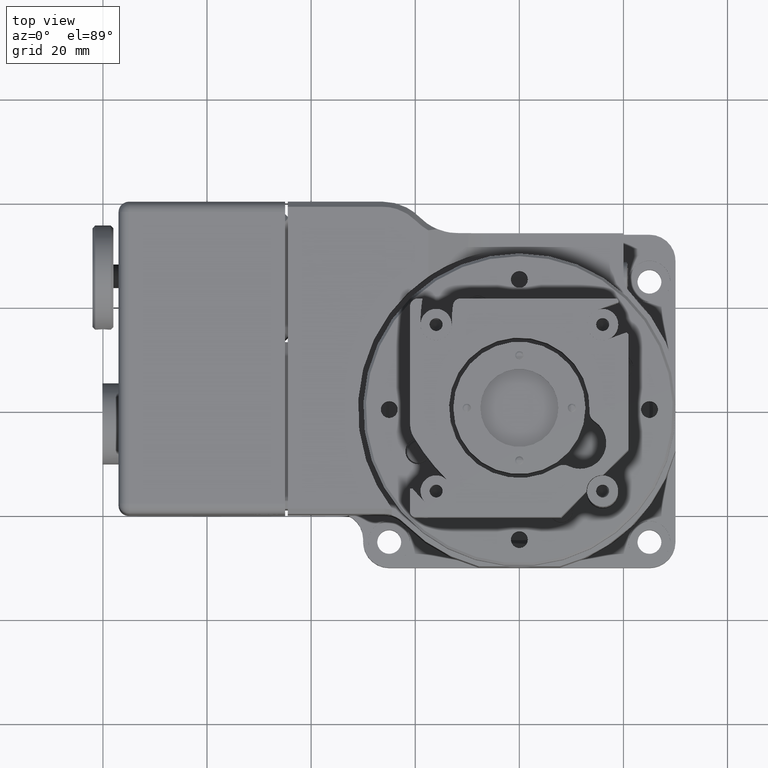
[diagram: clean part render]
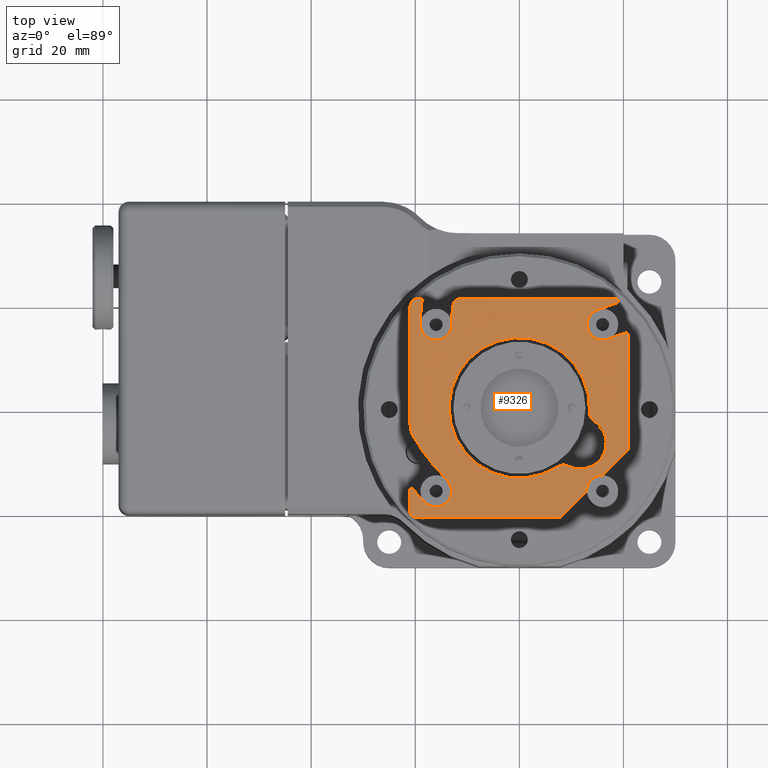
[diagram: same view with one face highlighted and labeled with its STEP entity id]
A machine part, top view. The second image highlights one B-rep face of the part: STEP entity #9326.
In plain terms, the highlighted planar face has unit normal (0, 0, 1).
Its self-contained STEP definition (entity closure, byte-faithful):
#195 = ORIENTED_EDGE ( 'NONE', *, *, #66504, .T. ) ;
#414 = AXIS2_PLACEMENT_3D ( 'NONE', #52020, #24429, #19027 ) ;
#466 = CIRCLE ( 'NONE', #22403, 1.377952755905511806 ) ;
#819 = ORIENTED_EDGE ( 'NONE', *, *, #994, .T. ) ;
#845 = ORIENTED_EDGE ( 'NONE', *, *, #70106, .T. ) ;
#994 = EDGE_CURVE ( 'NONE', #48477, #5063, #29060, .T. ) ;
#1185 = VERTEX_POINT ( 'NONE', #37935 ) ;
#1932 = DIRECTION ( 'NONE',  ( -0.7667625590239057765, -0.6419308203218718756, 0.000000000000000000 ) ) ;
#2111 = CARTESIAN_POINT ( 'NONE',  ( -0.8267716535433071723, 0.8267716535433071723, 0.4724409448818898127 ) ) ;
#2148 = EDGE_CURVE ( 'NONE', #54447, #43154, #21617, .T. ) ;
#2163 = AXIS2_PLACEMENT_3D ( 'NONE', #71660, #43812, #5383 ) ;
#2354 = CARTESIAN_POINT ( 'NONE',  ( -0.7990056959484960197, -0.2219316228917834755, 0.4724409448818898127 ) ) ;
#2410 = AXIS2_PLACEMENT_3D ( 'NONE', #37332, #69566, #54018 ) ;
#2493 = DIRECTION ( 'NONE',  ( 0.000000000000000000, 0.000000000000000000, -1.000000000000000000 ) ) ;
#2515 = DIRECTION ( 'NONE',  ( -0.9640925617953834958, -0.2655664366798161646, 0.000000000000000000 ) ) ;
#2758 = ORIENTED_EDGE ( 'NONE', *, *, #7486, .T. ) ;
#2844 = AXIS2_PLACEMENT_3D ( 'NONE', #52887, #57976, #23878 ) ;
#2902 = DIRECTION ( 'NONE',  ( 0.000000000000000000, 0.000000000000000000, -1.000000000000000000 ) ) ;
#2970 = FACE_BOUND ( 'NONE', #21435, .T. ) ;
#3257 = DIRECTION ( 'NONE',  ( -1.000000000000000000, 4.991450824911170448E-15, 0.000000000000000000 ) ) ;
#3496 = ORIENTED_EDGE ( 'NONE', *, *, #65897, .T. ) ;
#3568 = DIRECTION ( 'NONE',  ( 0.7071067811865469066, 0.7071067811865479058, 0.000000000000000000 ) ) ;
#3620 = LINE ( 'NONE', #31118, #66174 ) ;
#3662 = CIRCLE ( 'NONE', #44165, 0.1968503937007872739 ) ;
#3838 = VERTEX_POINT ( 'NONE', #28087 ) ;
#3921 = CARTESIAN_POINT ( 'NONE',  ( 0.4429133858267716439, -0.6988188976377952555, 0.4724409448818898127 ) ) ;
#4786 = AXIS2_PLACEMENT_3D ( 'NONE', #27493, #20998, #32601 ) ;
#5063 = VERTEX_POINT ( 'NONE', #71492 ) ;
#5069 = CARTESIAN_POINT ( 'NONE',  ( -0.7480314960629921295, 0.6299212598425196763, 0.4724409448818898127 ) ) ;
#5149 = ORIENTED_EDGE ( 'NONE', *, *, #64373, .F. ) ;
#5383 = DIRECTION ( 'NONE',  ( -0.6605782590758157991, 0.7507571935295487275, 0.000000000000000000 ) ) ;
#5781 = DIRECTION ( 'NONE',  ( -1.000000000000000000, 0.000000000000000000, 0.000000000000000000 ) ) ;
#6119 = EDGE_CURVE ( 'NONE', #27174, #26895, #62711, .T. ) ;
#6920 = CARTESIAN_POINT ( 'NONE',  ( 0.6337967219021496401, -0.5079355615624173703, 0.4724409448818898127 ) ) ;
#6965 = LINE ( 'NONE', #16754, #50364 ) ;
#7341 = DIRECTION ( 'NONE',  ( 0.000000000000000000, 0.000000000000000000, -1.000000000000000000 ) ) ;
#7486 = EDGE_CURVE ( 'NONE', #67746, #54447, #42456, .T. ) ;
#7643 = EDGE_CURVE ( 'NONE', #3838, #26895, #22441, .T. ) ;
#7894 = EDGE_CURVE ( 'NONE', #64468, #9811, #466, .T. ) ;
#8301 = DIRECTION ( 'NONE',  ( -0.7071067811865457964, -0.7071067811865492381, 0.000000000000000000 ) ) ;
#8642 = ORIENTED_EDGE ( 'NONE', *, *, #67127, .T. ) ;
#9326 = ADVANCED_FACE ( 'NONE', ( #2970, #13800 ), #70290, .T. ) ;
#9447 = DIRECTION ( 'NONE',  ( 1.000000000000000000, 1.057355261547769924E-16, 0.000000000000000000 ) ) ;
#9811 = VERTEX_POINT ( 'NONE', #11675 ) ;
#10252 = DIRECTION ( 'NONE',  ( 1.000000000000000000, 0.000000000000000000, 0.000000000000000000 ) ) ;
#10797 = EDGE_CURVE ( 'NONE', #43154, #68776, #33566, .T. ) ;
#11652 = DIRECTION ( 'NONE',  ( 3.172065784643300034E-16, -1.000000000000000000, 0.000000000000000000 ) ) ;
#11675 = CARTESIAN_POINT ( 'NONE',  ( -0.7338982736762833525, 0.8267716535433071723, 0.4724409448818898127 ) ) ;
#12147 = CARTESIAN_POINT ( 'NONE',  ( 0.5895251799221654654, 0.7409085772581771590, 0.4724409448818898127 ) ) ;
#12274 = DIRECTION ( 'NONE',  ( 0.000000000000000000, 0.000000000000000000, -1.000000000000000000 ) ) ;
#12632 = LINE ( 'NONE', #50708, #60952 ) ;
#12662 = DIRECTION ( 'NONE',  ( -0.7071067811865452413, 0.7071067811865499042, 0.000000000000000000 ) ) ;
#12681 = CARTESIAN_POINT ( 'NONE',  ( -0.7874015748031496509, -0.8267716535433071723, 0.4724409448818898127 ) ) ;
#12864 = VERTEX_POINT ( 'NONE', #41729 ) ;
#13284 = DIRECTION ( 'NONE',  ( -1.000000000000000000, 0.000000000000000000, 0.000000000000000000 ) ) ;
#13800 = FACE_OUTER_BOUND ( 'NONE', #42224, .T. ) ;
#13871 = EDGE_CURVE ( 'NONE', #32417, #25355, #29654, .T. ) ;
#14068 = AXIS2_PLACEMENT_3D ( 'NONE', #41383, #7341, #1932 ) ;
#14743 = EDGE_CURVE ( 'NONE', #15553, #12864, #34891, .T. ) ;
#14873 = EDGE_CURVE ( 'NONE', #15553, #63549, #3662, .T. ) ;
#14909 = LINE ( 'NONE', #20687, #22901 ) ;
#15156 = CARTESIAN_POINT ( 'NONE',  ( 0.7283464566929134243, 0.8070866141732283561, 0.4724409448818898127 ) ) ;
#15553 = VERTEX_POINT ( 'NONE', #2354 ) ;
#15908 = VECTOR ( 'NONE', #24198, 39.37007874015748854 ) ;
#15993 = VERTEX_POINT ( 'NONE', #31168 ) ;
#16232 = CARTESIAN_POINT ( 'NONE',  ( 0.8267716535433071723, 0.5477655059264645576, 0.4724409448818898127 ) ) ;
#16754 = CARTESIAN_POINT ( 'NONE',  ( -0.8267716535433071723, -0.8267716535433071723, 0.4724409448818898127 ) ) ;
#17003 = CARTESIAN_POINT ( 'NONE',  ( -0.6299212598425196763, -0.1211321637321318978, 0.4724409448818898127 ) ) ;
#17256 = LINE ( 'NONE', #65786, #50482 ) ;
#17802 = CARTESIAN_POINT ( 'NONE',  ( 0.7283464566929134243, 0.8267716535433071723, 0.4724409448818898127 ) ) ;
#17920 = EDGE_CURVE ( 'NONE', #68776, #27174, #14909, .T. ) ;
#18675 = EDGE_CURVE ( 'NONE', #63402, #1185, #48449, .T. ) ;
#19027 = DIRECTION ( 'NONE',  ( -0.05159593148689955305, 0.9986680428721043112, 0.000000000000000000 ) ) ;
#19098 = DIRECTION ( 'NONE',  ( 0.000000000000000000, 0.000000000000000000, -1.000000000000000000 ) ) ;
#19569 = ORIENTED_EDGE ( 'NONE', *, *, #17920, .T. ) ;
#19685 = CIRCLE ( 'NONE', #28933, 0.1181102362204724116 ) ;
#19718 = EDGE_CURVE ( 'NONE', #3838, #54121, #17256, .T. ) ;
#19784 = ORIENTED_EDGE ( 'NONE', *, *, #13871, .T. ) ;
#20206 = ORIENTED_EDGE ( 'NONE', *, *, #10797, .T. ) ;
#20687 = CARTESIAN_POINT ( 'NONE',  ( 0.4429133858267716439, -0.6988188976377952555, 0.4724409448818898127 ) ) ;
#20953 = VECTOR ( 'NONE', #13284, 39.37007874015748143 ) ;
#20964 = CARTESIAN_POINT ( 'NONE',  ( 0.3700935256529865880, -0.4407189925439173317, 0.4724409448818898127 ) ) ;
#20998 = DIRECTION ( 'NONE',  ( 0.000000000000000000, 0.000000000000000000, 1.000000000000000000 ) ) ;
#21435 = EDGE_LOOP ( 'NONE', ( #28886, #819, #5149, #64093 ) ) ;
#21617 = LINE ( 'NONE', #3921, #62107 ) ;
#22102 = DIRECTION ( 'NONE',  ( 0.9850246108334966832, -0.1724137931034478710, 0.000000000000000000 ) ) ;
#22203 = CARTESIAN_POINT ( 'NONE',  ( 0.6299212598425196763, 0.6299212598425196763, 0.4724409448818898127 ) ) ;
#22403 = AXIS2_PLACEMENT_3D ( 'NONE', #31358, #25531, #42604 ) ;
#22415 = LINE ( 'NONE', #62266, #39790 ) ;
#22441 = CIRCLE ( 'NONE', #2844, 0.01968503937007870866 ) ;
#22901 = VECTOR ( 'NONE', #64868, 39.37007874015748854 ) ;
#23001 = CARTESIAN_POINT ( 'NONE',  ( 0.5667206062998071392, -0.1001508987196759737, 0.4724409448818898127 ) ) ;
#23100 = AXIS2_PLACEMENT_3D ( 'NONE', #22203, #26553, #10252 ) ;
#23878 = DIRECTION ( 'NONE',  ( 0.5735764363510527097, 0.8191520442889871356, 0.000000000000000000 ) ) ;
#24198 = DIRECTION ( 'NONE',  ( 0.9396926207859083169, 0.3420201433256691015, 0.000000000000000000 ) ) ;
#24429 = DIRECTION ( 'NONE',  ( 0.000000000000000000, 0.000000000000000000, -1.000000000000000000 ) ) ;
#24542 = ORIENTED_EDGE ( 'NONE', *, *, #58620, .T. ) ;
#25146 = VERTEX_POINT ( 'NONE', #23001 ) ;
#25295 = CARTESIAN_POINT ( 'NONE',  ( -0.7874015748031496509, -0.7874015748031496509, 0.4724409448818898127 ) ) ;
#25355 = VERTEX_POINT ( 'NONE', #59470 ) ;
#25531 = DIRECTION ( 'NONE',  ( 0.000000000000000000, 0.000000000000000000, -1.000000000000000000 ) ) ;
#25898 = CIRCLE ( 'NONE', #47948, 1.141732283464567344 ) ;
#25926 = CARTESIAN_POINT ( 'NONE',  ( 0.6703173397628738872, 0.5189339424268621936, 0.4724409448818898127 ) ) ;
#26553 = DIRECTION ( 'NONE',  ( 0.000000000000000000, 0.000000000000000000, -1.000000000000000000 ) ) ;
#26895 = VERTEX_POINT ( 'NONE', #16232 ) ;
#26933 = CIRCLE ( 'NONE', #414, 0.07874015748031491790 ) ;
#27174 = VERTEX_POINT ( 'NONE', #27337 ) ;
#27337 = CARTESIAN_POINT ( 'NONE',  ( 0.8267716535433071723, -0.3149606299212598381, 0.4724409448818898127 ) ) ;
#27424 = DIRECTION ( 'NONE',  ( 0.000000000000000000, 0.000000000000000000, -1.000000000000000000 ) ) ;
#27448 = ORIENTED_EDGE ( 'NONE', *, *, #27512, .F. ) ;
#27493 = CARTESIAN_POINT ( 'NONE',  ( 0.6299212598425196763, 0.6299212598425196763, 0.4724409448818898127 ) ) ;
#27512 = EDGE_CURVE ( 'NONE', #67746, #31209, #53502, .T. ) ;
#28087 = CARTESIAN_POINT ( 'NONE',  ( 0.8003539341865039125, 0.5662633921624095068, 0.4724409448818898127 ) ) ;
#28398 = AXIS2_PLACEMENT_3D ( 'NONE', #42066, #35203, #31177 ) ;
#28886 = ORIENTED_EDGE ( 'NONE', *, *, #68606, .F. ) ;
#28933 = AXIS2_PLACEMENT_3D ( 'NONE', #53090, #36759, #53796 ) ;
#29060 = CIRCLE ( 'NONE', #45286, 0.5314960629921259283 ) ;
#29465 = ORIENTED_EDGE ( 'NONE', *, *, #14873, .F. ) ;
#29617 = CIRCLE ( 'NONE', #40009, 0.1968503937007873850 ) ;
#29654 = LINE ( 'NONE', #56854, #15908 ) ;
#30131 = CARTESIAN_POINT ( 'NONE',  ( -0.7134378088015590480, -0.7134378088015590480, 0.4724409448818898127 ) ) ;
#30452 = DIRECTION ( 'NONE',  ( 0.000000000000000000, 0.000000000000000000, -1.000000000000000000 ) ) ;
#30665 = CARTESIAN_POINT ( 'NONE',  ( -0.8092578807217913894, -0.6102362204724409711, 0.4724409448818898127 ) ) ;
#31118 = CARTESIAN_POINT ( 'NONE',  ( -0.4046289403608976376, -0.6102362204724409711, 0.4724409448818898127 ) ) ;
#31168 = CARTESIAN_POINT ( 'NONE',  ( -0.8267716535433071723, -0.6102362204724409711, 0.4724409448818898127 ) ) ;
#31177 = DIRECTION ( 'NONE',  ( -0.8906698608183789556, -0.4546506340364757648, 0.000000000000000000 ) ) ;
#31209 = VERTEX_POINT ( 'NONE', #43158 ) ;
#31358 = CARTESIAN_POINT ( 'NONE',  ( 0.6299212598425196763, 0.6299212598425196763, 0.4724409448818898127 ) ) ;
#31722 = CIRCLE ( 'NONE', #64079, 0.05905511811023620578 ) ;
#32164 = CARTESIAN_POINT ( 'NONE',  ( 0.5079355615624173703, -0.6337967219021496401, 0.4724409448818898127 ) ) ;
#32379 = VECTOR ( 'NONE', #9447, 39.37007874015748143 ) ;
#32417 = VERTEX_POINT ( 'NONE', #12147 ) ;
#32601 = DIRECTION ( 'NONE',  ( 0.8756394594652988639, 0.4829653579992249091, 0.000000000000000000 ) ) ;
#33224 = ORIENTED_EDGE ( 'NONE', *, *, #14743, .T. ) ;
#33426 = CARTESIAN_POINT ( 'NONE',  ( -0.8267716535433071723, -0.8267716535433071723, 0.4724409448818898127 ) ) ;
#33566 = CIRCLE ( 'NONE', #47498, 0.1220472440944882081 ) ;
#34438 = CARTESIAN_POINT ( 'NONE',  ( -0.8267716535433071723, 0.7677165354330708347, 0.4724409448818898127 ) ) ;
#34655 = VECTOR ( 'NONE', #71449, 39.37007874015748143 ) ;
#34891 = CIRCLE ( 'NONE', #4786, 1.663576141572405520 ) ;
#34896 = VERTEX_POINT ( 'NONE', #17802 ) ;
#35085 = CARTESIAN_POINT ( 'NONE',  ( 0.000000000000000000, 1.365923996832129914E-18, 0.4724409448818898127 ) ) ;
#35203 = DIRECTION ( 'NONE',  ( 0.000000000000000000, 0.000000000000000000, -1.000000000000000000 ) ) ;
#35253 = EDGE_CURVE ( 'NONE', #25355, #57684, #22415, .T. ) ;
#36046 = EDGE_CURVE ( 'NONE', #34896, #1185, #12632, .T. ) ;
#36759 = DIRECTION ( 'NONE',  ( 0.000000000000000000, 0.000000000000000000, -1.000000000000000000 ) ) ;
#37332 = CARTESIAN_POINT ( 'NONE',  ( 1.748382715945129988E-16, 0.000000000000000000, 0.4724409448818898127 ) ) ;
#37614 = DIRECTION ( 'NONE',  ( 0.7071067811865406894, 0.7071067811865544561, 0.000000000000000000 ) ) ;
#37888 = CARTESIAN_POINT ( 'NONE',  ( -0.5118110236220472231, 0.6299212598425196763, 0.4724409448818898127 ) ) ;
#37935 = CARTESIAN_POINT ( 'NONE',  ( -0.4439513147232952983, 0.8267716535433071723, 0.4724409448818898127 ) ) ;
#38527 = VERTEX_POINT ( 'NONE', #37888 ) ;
#38969 = CIRCLE ( 'NONE', #44795, 0.01968503937007867050 ) ;
#38990 = DIRECTION ( 'NONE',  ( -0.9396926207859086499, -0.3420201433256679358, 0.000000000000000000 ) ) ;
#39125 = CARTESIAN_POINT ( 'NONE',  ( -0.8267716535433071723, -0.1211321637321318978, 0.4724409448818898127 ) ) ;
#39412 = ORIENTED_EDGE ( 'NONE', *, *, #70177, .F. ) ;
#39790 = VECTOR ( 'NONE', #67658, 39.37007874015748143 ) ;
#40009 = AXIS2_PLACEMENT_3D ( 'NONE', #57590, #40565, #40920 ) ;
#40442 = EDGE_CURVE ( 'NONE', #15993, #31209, #65653, .T. ) ;
#40565 = DIRECTION ( 'NONE',  ( 0.000000000000000000, 0.000000000000000000, -1.000000000000000000 ) ) ;
#40920 = DIRECTION ( 'NONE',  ( -0.6517268955682880005, -0.7584537254130419015, 0.000000000000000000 ) ) ;
#41339 = DIRECTION ( 'NONE',  ( 1.000000000000000000, 0.000000000000000000, 0.000000000000000000 ) ) ;
#41383 = CARTESIAN_POINT ( 'NONE',  ( 0.6299212598425196763, 0.6299212598425196763, 0.4724409448818898127 ) ) ;
#41534 = VECTOR ( 'NONE', #47165, 39.37007874015748143 ) ;
#41630 = CIRCLE ( 'NONE', #23100, 0.1181102362204724116 ) ;
#41729 = CARTESIAN_POINT ( 'NONE',  ( -0.5464047108834803046, -0.5464047108834803046, 0.4724409448818898127 ) ) ;
#42066 = CARTESIAN_POINT ( 'NONE',  ( 0.6092932117946929793, -0.03391204560912122051, 0.4724409448818898127 ) ) ;
#42224 = EDGE_LOOP ( 'NONE', ( #27448, #2758, #67936, #20206, #19569, #61388, #43870, #65827, #24542, #19784, #62744, #46539, #53636, #45276, #845, #47576, #68882, #3496, #39412, #46082, #29465, #33224, #64795, #195, #8642, #69056 ) ) ;
#42456 = LINE ( 'NONE', #64518, #32379 ) ;
#42604 = DIRECTION ( 'NONE',  ( -0.9897433186107870151, 0.1428571428571429880, 0.000000000000000000 ) ) ;
#42682 = EDGE_CURVE ( 'NONE', #12864, #50767, #43392, .T. ) ;
#43154 = VERTEX_POINT ( 'NONE', #32164 ) ;
#43158 = CARTESIAN_POINT ( 'NONE',  ( -0.8267716535433071723, -0.7874015748031496509, 0.4724409448818898127 ) ) ;
#43392 = CIRCLE ( 'NONE', #50333, 0.1181102362204724116 ) ;
#43585 = EDGE_CURVE ( 'NONE', #57539, #63549, #6965, .T. ) ;
#43812 = DIRECTION ( 'NONE',  ( 0.000000000000000000, 0.000000000000000000, -1.000000000000000000 ) ) ;
#43870 = ORIENTED_EDGE ( 'NONE', *, *, #7643, .F. ) ;
#43929 = EDGE_CURVE ( 'NONE', #25146, #47246, #29617, .T. ) ;
#44165 = AXIS2_PLACEMENT_3D ( 'NONE', #17003, #12274, #2515 ) ;
#44662 = CARTESIAN_POINT ( 'NONE',  ( -0.6299212598425196763, -0.6299212598425196763, 0.4724409448818898127 ) ) ;
#44795 = AXIS2_PLACEMENT_3D ( 'NONE', #15156, #27424, #37614 ) ;
#45276 = ORIENTED_EDGE ( 'NONE', *, *, #18675, .F. ) ;
#45286 = AXIS2_PLACEMENT_3D ( 'NONE', #35085, #2493, #52831 ) ;
#45699 = EDGE_CURVE ( 'NONE', #34896, #57684, #38969, .T. ) ;
#46082 = ORIENTED_EDGE ( 'NONE', *, *, #43585, .T. ) ;
#46539 = ORIENTED_EDGE ( 'NONE', *, *, #45699, .F. ) ;
#47165 = DIRECTION ( 'NONE',  ( 0.000000000000000000, 1.000000000000000000, 0.000000000000000000 ) ) ;
#47246 = VERTEX_POINT ( 'NONE', #20964 ) ;
#47391 = CARTESIAN_POINT ( 'NONE',  ( 0.6299212598425196763, -0.6299212598425196763, 0.4724409448818898127 ) ) ;
#47498 = AXIS2_PLACEMENT_3D ( 'NONE', #47391, #19098, #69055 ) ;
#47576 = ORIENTED_EDGE ( 'NONE', *, *, #59123, .T. ) ;
#47834 = CARTESIAN_POINT ( 'NONE',  ( 0.7480314960629921295, 0.8070866141732283561, 0.4724409448818898127 ) ) ;
#47948 = AXIS2_PLACEMENT_3D ( 'NONE', #49671, #61224, #22102 ) ;
#48449 = CIRCLE ( 'NONE', #2163, 0.05905511811023624047 ) ;
#48477 = VERTEX_POINT ( 'NONE', #55220 ) ;
#49671 = CARTESIAN_POINT ( 'NONE',  ( 0.6299212598425196763, 0.6299212598425196763, 0.4724409448818898127 ) ) ;
#50333 = AXIS2_PLACEMENT_3D ( 'NONE', #44662, #30452, #41339 ) ;
#50364 = VECTOR ( 'NONE', #11652, 39.37007874015748143 ) ;
#50482 = VECTOR ( 'NONE', #38990, 39.37007874015748143 ) ;
#50708 = CARTESIAN_POINT ( 'NONE',  ( -0.8267716535433071723, 0.8267716535433071723, 0.4724409448818898127 ) ) ;
#50767 = VERTEX_POINT ( 'NONE', #30131 ) ;
#51807 = DIRECTION ( 'NONE',  ( 0.000000000000000000, 0.000000000000000000, -1.000000000000000000 ) ) ;
#52020 = CARTESIAN_POINT ( 'NONE',  ( 0.3340152988891429420, -0.5107073769630590121, 0.4724409448818898127 ) ) ;
#52161 = CARTESIAN_POINT ( 'NONE',  ( -0.7677165354330708347, 0.7677165354330708347, 0.4724409448818898127 ) ) ;
#52831 = DIRECTION ( 'NONE',  ( -0.2655968938874490592, -0.9640841716143561113, 0.000000000000000000 ) ) ;
#52887 = CARTESIAN_POINT ( 'NONE',  ( 0.8070866141732283561, 0.5477655059264645576, 0.4724409448818898127 ) ) ;
#52943 = CARTESIAN_POINT ( 'NONE',  ( 0.8267716535433071723, 0.8267716535433071723, 0.4724409448818898127 ) ) ;
#53059 = CARTESIAN_POINT ( 'NONE',  ( -0.5025261824268858479, 0.7752326413743739764, 0.4724409448818898127 ) ) ;
#53090 = CARTESIAN_POINT ( 'NONE',  ( -0.6299212598425196763, 0.6299212598425196763, 0.4724409448818898127 ) ) ;
#53502 = CIRCLE ( 'NONE', #68490, 0.03937007874015743814 ) ;
#53636 = ORIENTED_EDGE ( 'NONE', *, *, #36046, .T. ) ;
#53796 = DIRECTION ( 'NONE',  ( 1.000000000000000000, 0.000000000000000000, 0.000000000000000000 ) ) ;
#54018 = DIRECTION ( 'NONE',  ( 1.000000000000000000, 0.000000000000000000, 0.000000000000000000 ) ) ;
#54121 = VERTEX_POINT ( 'NONE', #25926 ) ;
#54447 = VERTEX_POINT ( 'NONE', #61680 ) ;
#55220 = CARTESIAN_POINT ( 'NONE',  ( 0.2909165506453826877, -0.4448096509033070411, 0.4724409448818898127 ) ) ;
#56239 = CARTESIAN_POINT ( 'NONE',  ( -0.7677165354330708347, 0.8267716535433071723, 0.4724409448818898127 ) ) ;
#56783 = VERTEX_POINT ( 'NONE', #30665 ) ;
#56854 = CARTESIAN_POINT ( 'NONE',  ( 0.2101815495590917404, 0.6028387872475393650, 0.4724409448818898127 ) ) ;
#57539 = VERTEX_POINT ( 'NONE', #34438 ) ;
#57590 = CARTESIAN_POINT ( 'NONE',  ( 0.4602890925625944818, -0.2657480314960630197, 0.4724409448818898127 ) ) ;
#57684 = VERTEX_POINT ( 'NONE', #47834 ) ;
#57976 = DIRECTION ( 'NONE',  ( 0.000000000000000000, 0.000000000000000000, -1.000000000000000000 ) ) ;
#58620 = EDGE_CURVE ( 'NONE', #54121, #32417, #41630, .T. ) ;
#59123 = EDGE_CURVE ( 'NONE', #38527, #64468, #19685, .T. ) ;
#59470 = CARTESIAN_POINT ( 'NONE',  ( 0.7480314960629921295, 0.7986001582766298901, 0.4724409448818898127 ) ) ;
#59682 = CIRCLE ( 'NONE', #28398, 0.07874015748031501505 ) ;
#60952 = VECTOR ( 'NONE', #5781, 39.37007874015748143 ) ;
#61224 = DIRECTION ( 'NONE',  ( 0.000000000000000000, 0.000000000000000000, 1.000000000000000000 ) ) ;
#61388 = ORIENTED_EDGE ( 'NONE', *, *, #6119, .T. ) ;
#61680 = CARTESIAN_POINT ( 'NONE',  ( 0.3149606299212598381, -0.8267716535433071723, 0.4724409448818898127 ) ) ;
#62107 = VECTOR ( 'NONE', #3568, 39.37007874015748854 ) ;
#62266 = CARTESIAN_POINT ( 'NONE',  ( 0.7480314960629921295, 0.3993000791383149450, 0.4724409448818898127 ) ) ;
#62271 = VERTEX_POINT ( 'NONE', #56239 ) ;
#62688 = CIRCLE ( 'NONE', #14068, 1.899796614013346874 ) ;
#62711 = LINE ( 'NONE', #52943, #41534 ) ;
#62744 = ORIENTED_EDGE ( 'NONE', *, *, #35253, .T. ) ;
#63402 = VERTEX_POINT ( 'NONE', #53059 ) ;
#63549 = VERTEX_POINT ( 'NONE', #39125 ) ;
#64079 = AXIS2_PLACEMENT_3D ( 'NONE', #52161, #51807, #12662 ) ;
#64093 = ORIENTED_EDGE ( 'NONE', *, *, #43929, .T. ) ;
#64373 = EDGE_CURVE ( 'NONE', #25146, #5063, #59682, .T. ) ;
#64468 = VERTEX_POINT ( 'NONE', #5069 ) ;
#64518 = CARTESIAN_POINT ( 'NONE',  ( 0.8267716535433071723, -0.8267716535433071723, 0.4724409448818898127 ) ) ;
#64795 = ORIENTED_EDGE ( 'NONE', *, *, #42682, .T. ) ;
#64868 = DIRECTION ( 'NONE',  ( 0.7071067811865469066, 0.7071067811865479058, 0.000000000000000000 ) ) ;
#65653 = LINE ( 'NONE', #33426, #34655 ) ;
#65786 = CARTESIAN_POINT ( 'NONE',  ( 0.3692008662900173599, 0.4093365090355314817, 0.4724409448818898127 ) ) ;
#65827 = ORIENTED_EDGE ( 'NONE', *, *, #19718, .T. ) ;
#65897 = EDGE_CURVE ( 'NONE', #9811, #62271, #68318, .T. ) ;
#66174 = VECTOR ( 'NONE', #3257, 39.37007874015748143 ) ;
#66504 = EDGE_CURVE ( 'NONE', #50767, #56783, #62688, .T. ) ;
#67127 = EDGE_CURVE ( 'NONE', #56783, #15993, #3620, .T. ) ;
#67658 = DIRECTION ( 'NONE',  ( 0.000000000000000000, 1.000000000000000000, 0.000000000000000000 ) ) ;
#67746 = VERTEX_POINT ( 'NONE', #12681 ) ;
#67936 = ORIENTED_EDGE ( 'NONE', *, *, #2148, .T. ) ;
#68318 = LINE ( 'NONE', #2111, #20953 ) ;
#68490 = AXIS2_PLACEMENT_3D ( 'NONE', #25295, #2902, #8301 ) ;
#68606 = EDGE_CURVE ( 'NONE', #48477, #47246, #26933, .T. ) ;
#68776 = VERTEX_POINT ( 'NONE', #6920 ) ;
#68882 = ORIENTED_EDGE ( 'NONE', *, *, #7894, .T. ) ;
#69055 = DIRECTION ( 'NONE',  ( -1.000000000000000000, 0.000000000000000000, 0.000000000000000000 ) ) ;
#69056 = ORIENTED_EDGE ( 'NONE', *, *, #40442, .T. ) ;
#69566 = DIRECTION ( 'NONE',  ( 0.000000000000000000, 0.000000000000000000, 1.000000000000000000 ) ) ;
#70106 = EDGE_CURVE ( 'NONE', #63402, #38527, #25898, .T. ) ;
#70177 = EDGE_CURVE ( 'NONE', #57539, #62271, #31722, .T. ) ;
#70290 = PLANE ( 'NONE',  #2410 ) ;
#71449 = DIRECTION ( 'NONE',  ( 3.172065784643300034E-16, -1.000000000000000000, 0.000000000000000000 ) ) ;
#71492 = CARTESIAN_POINT ( 'NONE',  ( 0.5306747328534449082, -0.02953629778858944677, 0.4724409448818898127 ) ) ;
#71660 = CARTESIAN_POINT ( 'NONE',  ( -0.4439513147232952983, 0.7677165354330708347, 0.4724409448818898127 ) ) ;